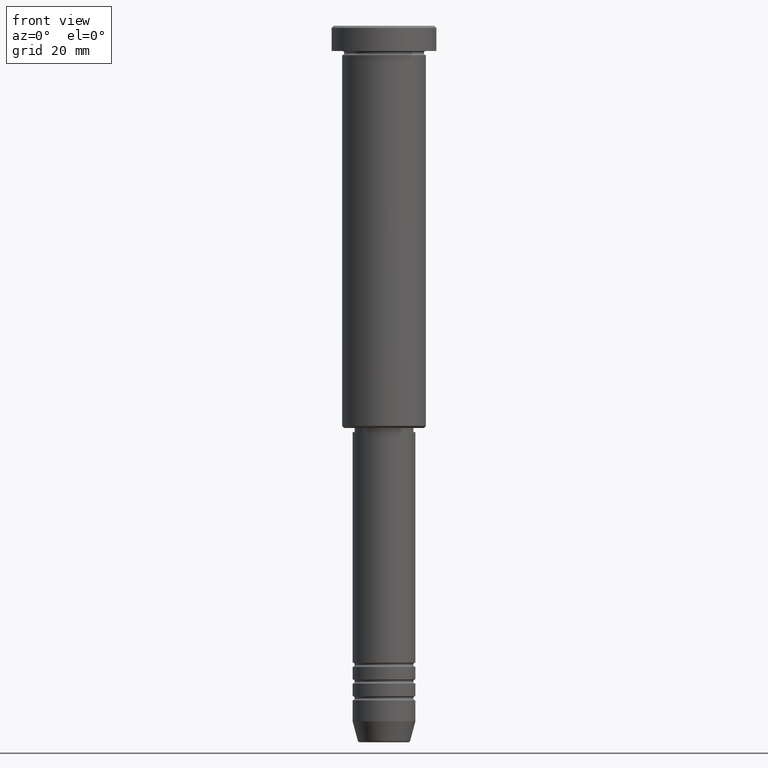
[diagram: clean part render]
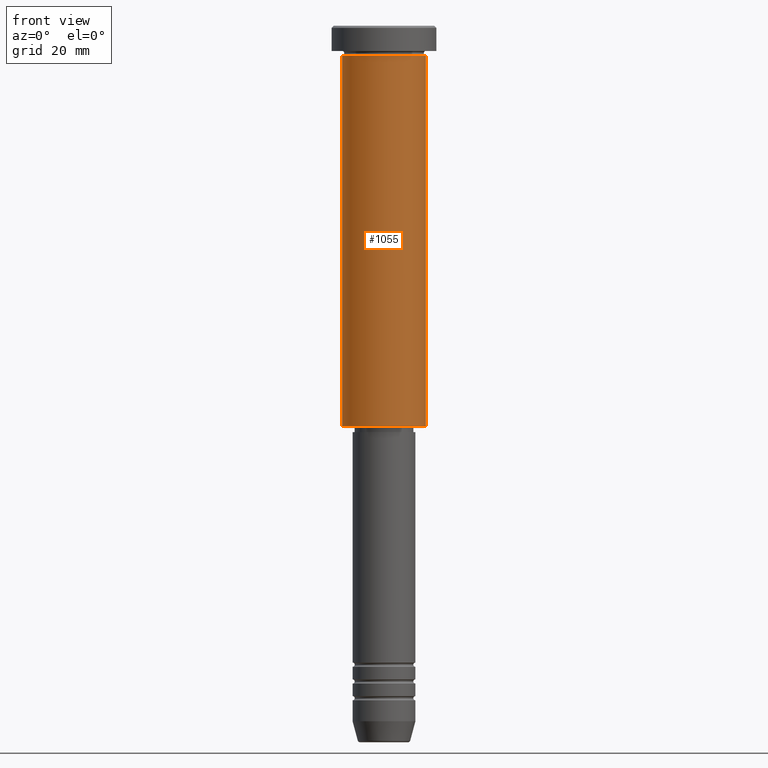
[diagram: same view with one face highlighted and labeled with its STEP entity id]
A machine part, front view. The second image highlights one B-rep face of the part: STEP entity #1055.
In plain terms, the highlighted cylindrical surface (partial cylindrical patch) has radius 10 mm, axis along (-0, -0, 1).
Its self-contained STEP definition (entity closure, byte-faithful):
#32 = AXIS2_PLACEMENT_3D ( 'NONE', #530, #895, #174 ) ;
#46 = CARTESIAN_POINT ( 'NONE',  ( 10.00000000000000000, 0.000000000000000000, -6.999999999999996447 ) ) ;
#80 = DIRECTION ( 'NONE',  ( -0.000000000000000000, -0.000000000000000000, 1.000000000000000000 ) ) ;
#174 = DIRECTION ( 'NONE',  ( 1.000000000000000000, 0.000000000000000000, 0.000000000000000000 ) ) ;
#182 = AXIS2_PLACEMENT_3D ( 'NONE', #998, #1004, #562 ) ;
#240 = VECTOR ( 'NONE', #80, 1000.000000000000000 ) ;
#252 = CARTESIAN_POINT ( 'NONE',  ( -10.00000000000000000, 1.224646799147353256E-15, -95.49999999999995737 ) ) ;
#280 = AXIS2_PLACEMENT_3D ( 'NONE', #579, #855, #413 ) ;
#294 = LINE ( 'NONE', #925, #381 ) ;
#308 = ORIENTED_EDGE ( 'NONE', *, *, #1164, .F. ) ;
#373 = ORIENTED_EDGE ( 'NONE', *, *, #794, .T. ) ;
#381 = VECTOR ( 'NONE', #1018, 1000.000000000000000 ) ;
#413 = DIRECTION ( 'NONE',  ( 1.000000000000000000, 0.000000000000000000, 0.000000000000000000 ) ) ;
#442 = ORIENTED_EDGE ( 'NONE', *, *, #731, .T. ) ;
#520 = VERTEX_POINT ( 'NONE', #874 ) ;
#527 = VERTEX_POINT ( 'NONE', #46 ) ;
#530 = CARTESIAN_POINT ( 'NONE',  ( 0.000000000000000000, 0.000000000000000000, 0.000000000000000000 ) ) ;
#540 = LINE ( 'NONE', #995, #240 ) ;
#555 = VERTEX_POINT ( 'NONE', #252 ) ;
#562 = DIRECTION ( 'NONE',  ( -1.000000000000000000, 0.000000000000000000, 0.000000000000000000 ) ) ;
#567 = EDGE_LOOP ( 'NONE', ( #308, #442, #373, #594 ) ) ;
#579 = CARTESIAN_POINT ( 'NONE',  ( 0.000000000000000000, 0.000000000000000000, -6.999999999999996447 ) ) ;
#594 = ORIENTED_EDGE ( 'NONE', *, *, #956, .F. ) ;
#642 = CARTESIAN_POINT ( 'NONE',  ( -10.00000000000000000, 1.224646799147353256E-15, -6.999999999999996447 ) ) ;
#706 = VERTEX_POINT ( 'NONE', #642 ) ;
#731 = EDGE_CURVE ( 'NONE', #555, #520, #880, .T. ) ;
#794 = EDGE_CURVE ( 'NONE', #520, #527, #540, .T. ) ;
#855 = DIRECTION ( 'NONE',  ( -0.000000000000000000, -0.000000000000000000, 1.000000000000000000 ) ) ;
#874 = CARTESIAN_POINT ( 'NONE',  ( 10.00000000000000000, 0.000000000000000000, -95.49999999999995737 ) ) ;
#880 = CIRCLE ( 'NONE', #182, 10.00000000000000000 ) ;
#895 = DIRECTION ( 'NONE',  ( -0.000000000000000000, -0.000000000000000000, 1.000000000000000000 ) ) ;
#925 = CARTESIAN_POINT ( 'NONE',  ( -10.00000000000000000, 1.224646799147353256E-15, 0.000000000000000000 ) ) ;
#956 = EDGE_CURVE ( 'NONE', #706, #527, #987, .T. ) ;
#987 = CIRCLE ( 'NONE', #280, 10.00000000000000000 ) ;
#995 = CARTESIAN_POINT ( 'NONE',  ( 10.00000000000000000, 0.000000000000000000, 0.000000000000000000 ) ) ;
#998 = CARTESIAN_POINT ( 'NONE',  ( 0.000000000000000000, 0.000000000000000000, -95.49999999999995737 ) ) ;
#1004 = DIRECTION ( 'NONE',  ( -0.000000000000000000, -0.000000000000000000, 1.000000000000000000 ) ) ;
#1018 = DIRECTION ( 'NONE',  ( -0.000000000000000000, -0.000000000000000000, 1.000000000000000000 ) ) ;
#1055 = ADVANCED_FACE ( 'NONE', ( #1175 ), #1169, .T. ) ;
#1164 = EDGE_CURVE ( 'NONE', #555, #706, #294, .T. ) ;
#1169 = CYLINDRICAL_SURFACE ( 'NONE', #32, 10.00000000000000000 ) ;
#1175 = FACE_OUTER_BOUND ( 'NONE', #567, .T. ) ;